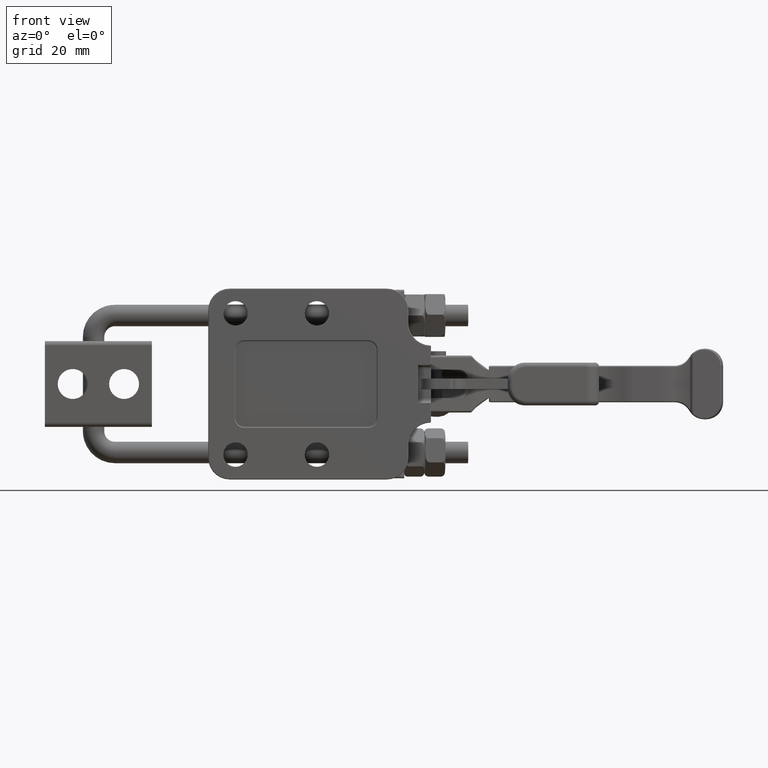
[diagram: clean part render]
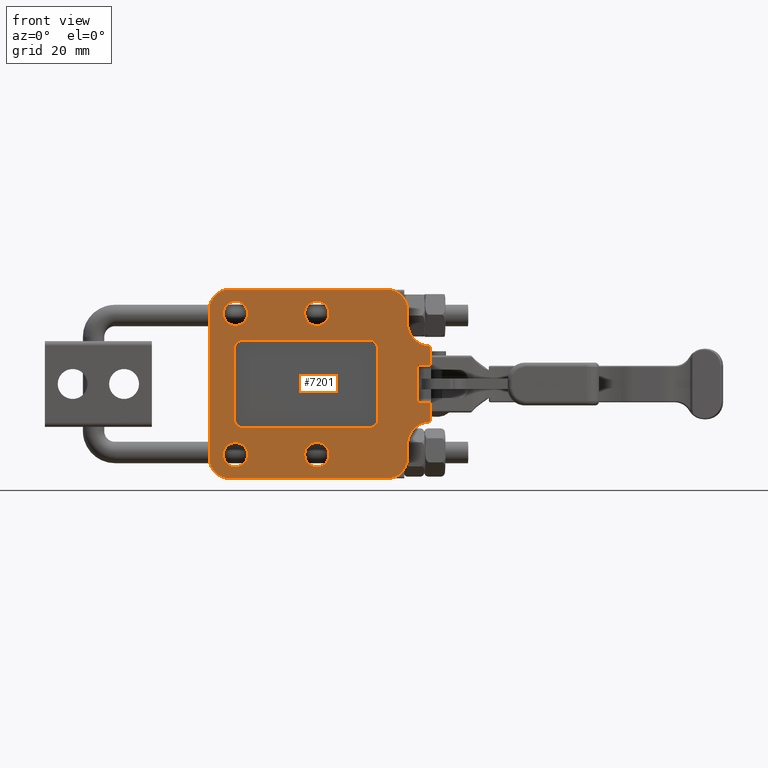
[diagram: same view with one face highlighted and labeled with its STEP entity id]
A machine part, front view. The second image highlights one B-rep face of the part: STEP entity #7201.
In plain terms, the highlighted planar face has unit normal (0, 1, 0).
Its self-contained STEP definition (entity closure, byte-faithful):
#350=FACE_BOUND('',#2190,.T.);
#351=FACE_BOUND('',#2191,.T.);
#352=FACE_BOUND('',#2192,.T.);
#353=FACE_BOUND('',#2193,.T.);
#354=FACE_BOUND('',#2194,.T.);
#424=B_SPLINE_CURVE_WITH_KNOTS('',3,(#11065,#11066,#11067,#11068,#11069,
#11070),.UNSPECIFIED.,.F.,.F.,(4,2,4),(-0.139911657146818,-0.116399093320465,
-0.10110644800808),.UNSPECIFIED.);
#425=B_SPLINE_CURVE_WITH_KNOTS('',3,(#11073,#11074,#11075,#11076,#11077,
#11078),.UNSPECIFIED.,.F.,.F.,(4,2,4),(-0.0388052091387378,-0.0235125638263527,
0.),.UNSPECIFIED.);
#557=PLANE('',#7704);
#681=LINE('',#10979,#1096);
#683=LINE('',#10991,#1098);
#685=LINE('',#11003,#1100);
#687=LINE('',#11012,#1102);
#696=LINE('',#11035,#1111);
#697=LINE('',#11037,#1112);
#698=LINE('',#11041,#1113);
#699=LINE('',#11045,#1114);
#700=LINE('',#11049,#1115);
#701=LINE('',#11053,#1116);
#702=LINE('',#11057,#1117);
#703=LINE('',#11061,#1118);
#704=LINE('',#11063,#1119);
#705=LINE('',#11072,#1120);
#1096=VECTOR('',#8648,16.);
#1098=VECTOR('',#8662,29.);
#1100=VECTOR('',#8676,16.);
#1102=VECTOR('',#8688,29.);
#1111=VECTOR('',#8711,2.65358983849);
#1112=VECTOR('',#8712,4.353637568211);
#1113=VECTOR('',#8715,3.);
#1114=VECTOR('',#8718,36.7);
#1115=VECTOR('',#8721,34.6);
#1116=VECTOR('',#8724,36.7);
#1117=VECTOR('',#8727,3.);
#1118=VECTOR('',#8730,4.353637568081);
#1119=VECTOR('',#8731,2.65358983849);
#1120=VECTOR('',#8732,8.5);
#1715=FACE_OUTER_BOUND('',#2189,.T.);
#2189=EDGE_LOOP('',(#5007,#5008,#5009,#5010,#5011,#5012,#5013,#5014,#5015,
#5016,#5017,#5018,#5019,#5020,#5021,#5022,#5023,#5024));
#2190=EDGE_LOOP('',(#5025));
#2191=EDGE_LOOP('',(#5026));
#2192=EDGE_LOOP('',(#5027));
#2193=EDGE_LOOP('',(#5028));
#2194=EDGE_LOOP('',(#5029,#5030,#5031,#5032,#5033,#5034,#5035,#5036));
#2728=CIRCLE('',#7678,2.3);
#2731=CIRCLE('',#7683,2.3);
#2735=CIRCLE('',#7689,2.30000000000001);
#2739=CIRCLE('',#7695,2.3);
#2743=CIRCLE('',#7705,5.499999998325);
#2744=CIRCLE('',#7706,4.8);
#2745=CIRCLE('',#7707,4.8);
#2746=CIRCLE('',#7708,4.8);
#2747=CIRCLE('',#7709,4.8);
#2748=CIRCLE('',#7710,5.499999998456);
#2749=CIRCLE('',#7711,2.85);
#2750=CIRCLE('',#7712,2.85);
#2751=CIRCLE('',#7713,2.85);
#2752=CIRCLE('',#7714,2.85);
#3217=VERTEX_POINT('',#10967);
#3220=VERTEX_POINT('',#10972);
#3222=VERTEX_POINT('',#10977);
#3224=VERTEX_POINT('',#10983);
#3226=VERTEX_POINT('',#10989);
#3228=VERTEX_POINT('',#10995);
#3230=VERTEX_POINT('',#11001);
#3232=VERTEX_POINT('',#11007);
#3238=VERTEX_POINT('',#11033);
#3239=VERTEX_POINT('',#11034);
#3240=VERTEX_POINT('',#11036);
#3241=VERTEX_POINT('',#11038);
#3242=VERTEX_POINT('',#11040);
#3243=VERTEX_POINT('',#11042);
#3244=VERTEX_POINT('',#11044);
#3245=VERTEX_POINT('',#11046);
#3246=VERTEX_POINT('',#11048);
#3247=VERTEX_POINT('',#11050);
#3248=VERTEX_POINT('',#11052);
#3249=VERTEX_POINT('',#11054);
#3250=VERTEX_POINT('',#11056);
#3251=VERTEX_POINT('',#11058);
#3252=VERTEX_POINT('',#11060);
#3253=VERTEX_POINT('',#11062);
#3254=VERTEX_POINT('',#11064);
#3255=VERTEX_POINT('',#11071);
#3256=VERTEX_POINT('',#11079);
#3257=VERTEX_POINT('',#11081);
#3258=VERTEX_POINT('',#11083);
#3259=VERTEX_POINT('',#11085);
#3884=EDGE_CURVE('',#3220,#3217,#2728,.T.);
#3886=EDGE_CURVE('',#3222,#3220,#681,.T.);
#3889=EDGE_CURVE('',#3224,#3222,#2731,.T.);
#3892=EDGE_CURVE('',#3226,#3224,#683,.T.);
#3895=EDGE_CURVE('',#3228,#3226,#2735,.T.);
#3898=EDGE_CURVE('',#3230,#3228,#685,.T.);
#3901=EDGE_CURVE('',#3232,#3230,#2739,.T.);
#3903=EDGE_CURVE('',#3217,#3232,#687,.T.);
#3914=EDGE_CURVE('',#3238,#3239,#696,.T.);
#3915=EDGE_CURVE('',#3238,#3240,#697,.T.);
#3916=EDGE_CURVE('',#3241,#3240,#2743,.T.);
#3917=EDGE_CURVE('',#3242,#3241,#698,.T.);
#3918=EDGE_CURVE('',#3243,#3242,#2744,.T.);
#3919=EDGE_CURVE('',#3244,#3243,#699,.T.);
#3920=EDGE_CURVE('',#3245,#3244,#2745,.T.);
#3921=EDGE_CURVE('',#3246,#3245,#700,.T.);
#3922=EDGE_CURVE('',#3247,#3246,#2746,.T.);
#3923=EDGE_CURVE('',#3248,#3247,#701,.T.);
#3924=EDGE_CURVE('',#3249,#3248,#2747,.T.);
#3925=EDGE_CURVE('',#3250,#3249,#702,.T.);
#3926=EDGE_CURVE('',#3251,#3250,#2748,.T.);
#3927=EDGE_CURVE('',#3252,#3251,#703,.T.);
#3928=EDGE_CURVE('',#3252,#3253,#704,.T.);
#3929=EDGE_CURVE('',#3254,#3253,#424,.T.);
#3930=EDGE_CURVE('',#3254,#3255,#705,.T.);
#3931=EDGE_CURVE('',#3239,#3255,#425,.T.);
#3932=EDGE_CURVE('',#3256,#3256,#2749,.T.);
#3933=EDGE_CURVE('',#3257,#3257,#2750,.T.);
#3934=EDGE_CURVE('',#3258,#3258,#2751,.T.);
#3935=EDGE_CURVE('',#3259,#3259,#2752,.T.);
#5007=ORIENTED_EDGE('',*,*,#3914,.F.);
#5008=ORIENTED_EDGE('',*,*,#3915,.T.);
#5009=ORIENTED_EDGE('',*,*,#3916,.F.);
#5010=ORIENTED_EDGE('',*,*,#3917,.F.);
#5011=ORIENTED_EDGE('',*,*,#3918,.F.);
#5012=ORIENTED_EDGE('',*,*,#3919,.F.);
#5013=ORIENTED_EDGE('',*,*,#3920,.F.);
#5014=ORIENTED_EDGE('',*,*,#3921,.F.);
#5015=ORIENTED_EDGE('',*,*,#3922,.F.);
#5016=ORIENTED_EDGE('',*,*,#3923,.F.);
#5017=ORIENTED_EDGE('',*,*,#3924,.F.);
#5018=ORIENTED_EDGE('',*,*,#3925,.F.);
#5019=ORIENTED_EDGE('',*,*,#3926,.F.);
#5020=ORIENTED_EDGE('',*,*,#3927,.F.);
#5021=ORIENTED_EDGE('',*,*,#3928,.T.);
#5022=ORIENTED_EDGE('',*,*,#3929,.F.);
#5023=ORIENTED_EDGE('',*,*,#3930,.T.);
#5024=ORIENTED_EDGE('',*,*,#3931,.F.);
#5025=ORIENTED_EDGE('',*,*,#3932,.T.);
#5026=ORIENTED_EDGE('',*,*,#3933,.T.);
#5027=ORIENTED_EDGE('',*,*,#3934,.T.);
#5028=ORIENTED_EDGE('',*,*,#3935,.T.);
#5029=ORIENTED_EDGE('',*,*,#3884,.F.);
#5030=ORIENTED_EDGE('',*,*,#3886,.F.);
#5031=ORIENTED_EDGE('',*,*,#3889,.F.);
#5032=ORIENTED_EDGE('',*,*,#3892,.F.);
#5033=ORIENTED_EDGE('',*,*,#3895,.F.);
#5034=ORIENTED_EDGE('',*,*,#3898,.F.);
#5035=ORIENTED_EDGE('',*,*,#3901,.F.);
#5036=ORIENTED_EDGE('',*,*,#3903,.F.);
#7201=ADVANCED_FACE('',(#1715,#350,#351,#352,#353,#354),#557,.F.);
#7678=AXIS2_PLACEMENT_3D('',#10974,#8642,#8643);
#7683=AXIS2_PLACEMENT_3D('',#10985,#8654,#8655);
#7689=AXIS2_PLACEMENT_3D('',#10997,#8668,#8669);
#7695=AXIS2_PLACEMENT_3D('',#11009,#8682,#8683);
#7704=AXIS2_PLACEMENT_3D('',#11032,#8709,#8710);
#7705=AXIS2_PLACEMENT_3D('',#11039,#8713,#8714);
#7706=AXIS2_PLACEMENT_3D('',#11043,#8716,#8717);
#7707=AXIS2_PLACEMENT_3D('',#11047,#8719,#8720);
#7708=AXIS2_PLACEMENT_3D('',#11051,#8722,#8723);
#7709=AXIS2_PLACEMENT_3D('',#11055,#8725,#8726);
#7710=AXIS2_PLACEMENT_3D('',#11059,#8728,#8729);
#7711=AXIS2_PLACEMENT_3D('',#11080,#8733,#8734);
#7712=AXIS2_PLACEMENT_3D('',#11082,#8735,#8736);
#7713=AXIS2_PLACEMENT_3D('',#11084,#8737,#8738);
#7714=AXIS2_PLACEMENT_3D('',#11086,#8739,#8740);
#8642=DIRECTION('center_axis',(0.,-1.,0.));
#8643=DIRECTION('ref_axis',(0.707106781186547,0.,0.707106781186547));
#8648=DIRECTION('',(0.,0.,1.));
#8654=DIRECTION('center_axis',(0.,-1.,0.));
#8655=DIRECTION('ref_axis',(0.707106781186547,0.,-0.707106781186548));
#8662=DIRECTION('',(1.,0.,0.));
#8668=DIRECTION('center_axis',(0.,-1.,0.));
#8669=DIRECTION('ref_axis',(-0.707106781186548,0.,-0.707106781186548));
#8676=DIRECTION('',(0.,0.,-1.));
#8682=DIRECTION('center_axis',(0.,-1.,0.));
#8683=DIRECTION('ref_axis',(-0.707106781186547,0.,0.707106781186547));
#8688=DIRECTION('',(-1.,0.,0.));
#8709=DIRECTION('center_axis',(0.,1.,0.));
#8710=DIRECTION('ref_axis',(1.,0.,0.));
#8711=DIRECTION('',(-1.,0.,0.));
#8712=DIRECTION('',(0.,0.,1.));
#8713=DIRECTION('center_axis',(0.,-1.,0.));
#8714=DIRECTION('ref_axis',(-1.,0.,0.));
#8715=DIRECTION('',(1.61056353439E-13,0.,-1.));
#8716=DIRECTION('center_axis',(0.,1.,0.));
#8717=DIRECTION('ref_axis',(0.,0.,1.));
#8718=DIRECTION('',(1.,0.,0.));
#8719=DIRECTION('center_axis',(0.,1.,0.));
#8720=DIRECTION('ref_axis',(-1.,0.,0.));
#8721=DIRECTION('',(0.,0.,1.));
#8722=DIRECTION('center_axis',(0.,1.,0.));
#8723=DIRECTION('ref_axis',(0.,0.,-1.));
#8724=DIRECTION('',(-1.,0.,0.));
#8725=DIRECTION('center_axis',(0.,1.,0.));
#8726=DIRECTION('ref_axis',(1.,0.,0.));
#8727=DIRECTION('',(-1.634248292248E-13,0.,-1.));
#8728=DIRECTION('center_axis',(0.,-1.,0.));
#8729=DIRECTION('ref_axis',(-0.0363636363738502,0.,0.999338624265904));
#8730=DIRECTION('',(0.,0.,-1.));
#8731=DIRECTION('',(-1.,0.,0.));
#8732=DIRECTION('',(0.,0.,1.));
#8733=DIRECTION('center_axis',(0.,1.,0.));
#8734=DIRECTION('ref_axis',(1.,0.,0.));
#8735=DIRECTION('center_axis',(0.,1.,0.));
#8736=DIRECTION('ref_axis',(1.,0.,0.));
#8737=DIRECTION('center_axis',(0.,1.,0.));
#8738=DIRECTION('ref_axis',(1.,0.,0.));
#8739=DIRECTION('center_axis',(0.,1.,0.));
#8740=DIRECTION('ref_axis',(1.,0.,0.));
#10967=CARTESIAN_POINT('',(11.35,0.,10.3));
#10972=CARTESIAN_POINT('',(13.65,0.,8.00000000000001));
#10974=CARTESIAN_POINT('Origin',(11.35,0.,8.00000000000001));
#10977=CARTESIAN_POINT('',(13.65,0.,-8.00000000000001));
#10979=CARTESIAN_POINT('',(13.65,0.,4.));
#10983=CARTESIAN_POINT('',(11.35,0.,-10.3));
#10985=CARTESIAN_POINT('Origin',(11.35,0.,-8.00000000000001));
#10989=CARTESIAN_POINT('',(-17.65,0.,-10.3));
#10991=CARTESIAN_POINT('',(5.67500000000001,0.,-10.3));
#10995=CARTESIAN_POINT('',(-19.95,0.,-8.));
#10997=CARTESIAN_POINT('Origin',(-17.65,0.,-8.));
#11001=CARTESIAN_POINT('',(-19.95,0.,8.));
#11003=CARTESIAN_POINT('',(-19.95,0.,-4.));
#11007=CARTESIAN_POINT('',(-17.65,0.,10.3));
#11009=CARTESIAN_POINT('Origin',(-17.65,0.,8.));
#11012=CARTESIAN_POINT('',(-8.825,0.,10.3));
#11032=CARTESIAN_POINT('Origin',(0.,0.,0.));
#11033=CARTESIAN_POINT('',(25.8,0.,4.45));
#11034=CARTESIAN_POINT('',(23.14641016151,0.,4.45));
#11035=CARTESIAN_POINT('',(25.8,0.,4.45));
#11036=CARTESIAN_POINT('',(25.8,0.,8.803637568211));
#11037=CARTESIAN_POINT('',(25.8,0.,4.45));
#11038=CARTESIAN_POINT('',(20.5000000007447,0.,14.3));
#11039=CARTESIAN_POINT('Origin',(26.,0.,14.3));
#11040=CARTESIAN_POINT('',(20.5,0.,17.3));
#11041=CARTESIAN_POINT('',(20.5,0.,17.3));
#11042=CARTESIAN_POINT('',(15.7,0.,22.1));
#11043=CARTESIAN_POINT('Origin',(15.7,0.,17.3));
#11044=CARTESIAN_POINT('',(-21.,0.,22.1));
#11045=CARTESIAN_POINT('',(-21.,0.,22.1));
#11046=CARTESIAN_POINT('',(-25.8,0.,17.3));
#11047=CARTESIAN_POINT('Origin',(-21.,0.,17.3));
#11048=CARTESIAN_POINT('',(-25.8,0.,-17.3));
#11049=CARTESIAN_POINT('',(-25.8,0.,-17.3));
#11050=CARTESIAN_POINT('',(-21.,0.,-22.1));
#11051=CARTESIAN_POINT('Origin',(-21.,0.,-17.3));
#11052=CARTESIAN_POINT('',(15.7,0.,-22.1));
#11053=CARTESIAN_POINT('',(15.7,0.,-22.1));
#11054=CARTESIAN_POINT('',(20.5,0.,-17.3));
#11055=CARTESIAN_POINT('Origin',(15.7,0.,-17.3));
#11056=CARTESIAN_POINT('',(20.5000000006862,0.,-14.3));
#11057=CARTESIAN_POINT('',(20.5,0.,-14.3));
#11058=CARTESIAN_POINT('',(25.8,0.,-8.803637568081));
#11059=CARTESIAN_POINT('Origin',(26.,0.,-14.3));
#11060=CARTESIAN_POINT('',(25.8,0.,-4.45));
#11061=CARTESIAN_POINT('',(25.8,0.,-4.45));
#11062=CARTESIAN_POINT('',(23.14641016151,0.,-4.45));
#11063=CARTESIAN_POINT('',(25.8,0.,-4.45));
#11064=CARTESIAN_POINT('',(22.8,0.,-4.25));
#11065=CARTESIAN_POINT('Ctrl Pts',(22.8,0.,-4.25));
#11066=CARTESIAN_POINT('Ctrl Pts',(22.8554196444162,0.,-4.30541964441619));
#11067=CARTESIAN_POINT('Ctrl Pts',(22.9230446544408,0.,-4.37078254323774));
#11068=CARTESIAN_POINT('Ctrl Pts',(23.0369460946302,0.,-4.43208560002045));
#11069=CARTESIAN_POINT('Ctrl Pts',(23.0954346771387,0.,-4.45));
#11070=CARTESIAN_POINT('Ctrl Pts',(23.1464101615138,0.,-4.45));
#11071=CARTESIAN_POINT('',(22.8,0.,4.25));
#11072=CARTESIAN_POINT('',(22.8,0.,-4.25));
#11073=CARTESIAN_POINT('Ctrl Pts',(23.1464101615138,0.,4.45));
#11074=CARTESIAN_POINT('Ctrl Pts',(23.0954346771387,0.,4.44999999999928));
#11075=CARTESIAN_POINT('Ctrl Pts',(23.0369460946302,0.,4.43208560002045));
#11076=CARTESIAN_POINT('Ctrl Pts',(22.9230446544408,0.,4.37078254323774));
#11077=CARTESIAN_POINT('Ctrl Pts',(22.8554196444162,0.,4.30541964441619));
#11078=CARTESIAN_POINT('Ctrl Pts',(22.8,0.,4.25));
#11079=CARTESIAN_POINT('',(-22.5,0.,-16.5));
#11080=CARTESIAN_POINT('Origin',(-19.65,0.,-16.5));
#11081=CARTESIAN_POINT('',(-3.5,0.,16.5));
#11082=CARTESIAN_POINT('Origin',(-0.65,0.,16.5));
#11083=CARTESIAN_POINT('',(-22.5,0.,16.5));
#11084=CARTESIAN_POINT('Origin',(-19.65,0.,16.5));
#11085=CARTESIAN_POINT('',(-3.5,0.,-16.5));
#11086=CARTESIAN_POINT('Origin',(-0.65,0.,-16.5));